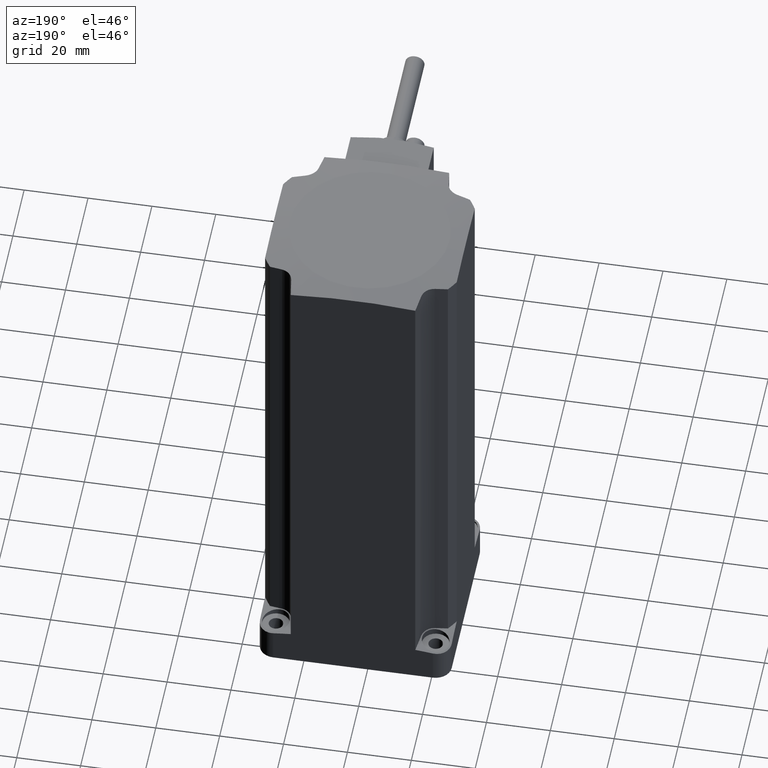
[diagram: clean part render]
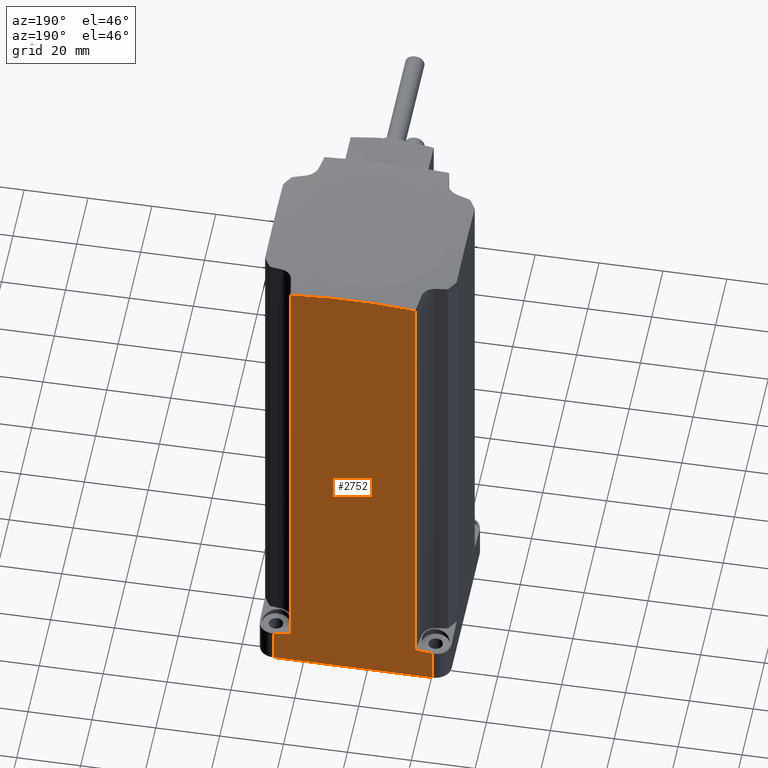
[diagram: same view with one face highlighted and labeled with its STEP entity id]
A machine part, auxiliary view. The second image highlights one B-rep face of the part: STEP entity #2752.
In plain terms, the highlighted planar face has unit normal (0, -1, 0).
Its self-contained STEP definition (entity closure, byte-faithful):
#37 = AXIS2_PLACEMENT_3D ( 'NONE', #2057, #1669, #2840 ) ;
#89 = LINE ( 'NONE', #465, #1423 ) ;
#160 = DIRECTION ( 'NONE',  ( 0.0000000000000000000, -1.000000000000000000, 0.0000000000000000000 ) ) ;
#206 = CIRCLE ( 'NONE', #3049, 197.7371993303249837 ) ;
#421 = ORIENTED_EDGE ( 'NONE', *, *, #490, .T. ) ;
#449 = VERTEX_POINT ( 'NONE', #1400 ) ;
#465 = CARTESIAN_POINT ( 'NONE',  ( -25.00000000000000000, 30.00000000000000000, 13.00000000000000000 ) ) ;
#490 = EDGE_CURVE ( 'NONE', #1175, #5032, #1870, .T. ) ;
#655 = VERTEX_POINT ( 'NONE', #2252 ) ;
#957 = CARTESIAN_POINT ( 'NONE',  ( 2.846724823761685866E-10, 29.99999999999999289, -185.4482028544169623 ) ) ;
#973 = VECTOR ( 'NONE', #2083, 1000.000000000000000 ) ;
#990 = ORIENTED_EDGE ( 'NONE', *, *, #3182, .T. ) ;
#1155 = CARTESIAN_POINT ( 'NONE',  ( 30.00000000000000000, 30.00000000000000000, 13.00000000000000000 ) ) ;
#1175 = VERTEX_POINT ( 'NONE', #3677 ) ;
#1230 = ORIENTED_EDGE ( 'NONE', *, *, #2068, .F. ) ;
#1300 = EDGE_CURVE ( 'NONE', #2957, #4945, #2894, .T. ) ;
#1400 = CARTESIAN_POINT ( 'NONE',  ( -25.00000000000000000, 30.00000000000000000, 0.0000000000000000000 ) ) ;
#1410 = CARTESIAN_POINT ( 'NONE',  ( -19.50000000000000355, 29.99999999999999645, -0.002000000000000265454 ) ) ;
#1423 = VECTOR ( 'NONE', #4213, 1000.000000000000000 ) ;
#1433 = CARTESIAN_POINT ( 'NONE',  ( 30.00000000000000000, 30.00000000000000000, 0.0000000000000000000 ) ) ;
#1485 = ORIENTED_EDGE ( 'NONE', *, *, #1300, .F. ) ;
#1578 = EDGE_LOOP ( 'NONE', ( #2265, #990, #1230, #5001, #1485, #4447, #2043, #421 ) ) ;
#1669 = DIRECTION ( 'NONE',  ( 0.0000000000000000000, -1.000000000000000000, 0.0000000000000000000 ) ) ;
#1811 = CARTESIAN_POINT ( 'NONE',  ( 25.00000000000000000, 30.00000000000000000, 0.0000000000000000000 ) ) ;
#1816 = DIRECTION ( 'NONE',  ( 0.0000000000000000000, 0.0000000000000000000, 1.000000000000000000 ) ) ;
#1870 = LINE ( 'NONE', #5057, #3652 ) ;
#1991 = LINE ( 'NONE', #2147, #4090 ) ;
#1994 = DIRECTION ( 'NONE',  ( 0.0000000000000000000, 0.0000000000000000000, -1.000000000000000000 ) ) ;
#2037 = AXIS2_PLACEMENT_3D ( 'NONE', #4006, #4848, #1994 ) ;
#2043 = ORIENTED_EDGE ( 'NONE', *, *, #2332, .F. ) ;
#2057 = CARTESIAN_POINT ( 'NONE',  ( 2.846724823761685866E-10, 29.99999999999999289, -185.4482028544169623 ) ) ;
#2068 = EDGE_CURVE ( 'NONE', #4711, #3776, #206, .T. ) ;
#2083 = DIRECTION ( 'NONE',  ( 0.0000000000000000000, 0.0000000000000000000, 1.000000000000000000 ) ) ;
#2125 = VECTOR ( 'NONE', #3390, 1000.000000000000000 ) ;
#2147 = CARTESIAN_POINT ( 'NONE',  ( 19.50000000000000355, 29.99999999999999645, -0.002000000000000265454 ) ) ;
#2252 = CARTESIAN_POINT ( 'NONE',  ( 19.49999999999999645, 29.99999999999999289, 11.32514391544359178 ) ) ;
#2265 = ORIENTED_EDGE ( 'NONE', *, *, #2956, .T. ) ;
#2332 = EDGE_CURVE ( 'NONE', #1175, #655, #2541, .T. ) ;
#2540 = EDGE_CURVE ( 'NONE', #4711, #4945, #2560, .T. ) ;
#2541 = CIRCLE ( 'NONE', #37, 197.7371993303249837 ) ;
#2560 = LINE ( 'NONE', #1410, #973 ) ;
#2752 = ADVANCED_FACE ( 'NONE', ( #3619 ), #3230, .F. ) ;
#2840 = DIRECTION ( 'NONE',  ( 0.0000000000000000000, 0.0000000000000000000, -1.000000000000000000 ) ) ;
#2894 = CIRCLE ( 'NONE', #2037, 197.7371993328550275 ) ;
#2956 = EDGE_CURVE ( 'NONE', #5032, #449, #3853, .T. ) ;
#2957 = VERTEX_POINT ( 'NONE', #4626 ) ;
#3049 = AXIS2_PLACEMENT_3D ( 'NONE', #957, #160, #4969 ) ;
#3130 = DIRECTION ( 'NONE',  ( 0.0000000000000000000, -1.000000000000000000, 0.0000000000000000000 ) ) ;
#3182 = EDGE_CURVE ( 'NONE', #449, #3776, #89, .T. ) ;
#3230 = PLANE ( 'NONE',  #3467 ) ;
#3390 = DIRECTION ( 'NONE',  ( -1.000000000000000000, 0.0000000000000000000, 0.0000000000000000000 ) ) ;
#3467 = AXIS2_PLACEMENT_3D ( 'NONE', #1155, #3130, #4731 ) ;
#3468 = EDGE_CURVE ( 'NONE', #655, #2957, #1991, .T. ) ;
#3619 = FACE_OUTER_BOUND ( 'NONE', #1578, .T. ) ;
#3652 = VECTOR ( 'NONE', #5003, 1000.000000000000000 ) ;
#3677 = CARTESIAN_POINT ( 'NONE',  ( 25.00000000000000000, 29.99999999999999289, 10.70224960240232015 ) ) ;
#3687 = CARTESIAN_POINT ( 'NONE',  ( -19.49999999999999645, 29.99999999999999289, 161.8419984425317466 ) ) ;
#3776 = VERTEX_POINT ( 'NONE', #4524 ) ;
#3798 = CARTESIAN_POINT ( 'NONE',  ( -19.50000000000000355, 29.99999999999999645, 11.32514391538718890 ) ) ;
#3853 = LINE ( 'NONE', #1433, #2125 ) ;
#4006 = CARTESIAN_POINT ( 'NONE',  ( 1.334721488490199657E-11, 29.99999999999999645, -34.93134832984431881 ) ) ;
#4090 = VECTOR ( 'NONE', #1816, 1000.000000000000000 ) ;
#4213 = DIRECTION ( 'NONE',  ( -0.0000000000000000000, -0.0000000000000000000, 1.000000000000000000 ) ) ;
#4447 = ORIENTED_EDGE ( 'NONE', *, *, #3468, .F. ) ;
#4524 = CARTESIAN_POINT ( 'NONE',  ( -25.00000000000000000, 29.99999999999999289, 10.70224960232976663 ) ) ;
#4626 = CARTESIAN_POINT ( 'NONE',  ( 19.50000000000001066, 29.99999999999998934, 161.8419984425317466 ) ) ;
#4711 = VERTEX_POINT ( 'NONE', #3798 ) ;
#4731 = DIRECTION ( 'NONE',  ( 0.0000000000000000000, -0.0000000000000000000, -1.000000000000000000 ) ) ;
#4848 = DIRECTION ( 'NONE',  ( 0.0000000000000000000, -1.000000000000000000, 0.0000000000000000000 ) ) ;
#4945 = VERTEX_POINT ( 'NONE', #3687 ) ;
#4969 = DIRECTION ( 'NONE',  ( 0.0000000000000000000, 0.0000000000000000000, -1.000000000000000000 ) ) ;
#5001 = ORIENTED_EDGE ( 'NONE', *, *, #2540, .T. ) ;
#5003 = DIRECTION ( 'NONE',  ( 0.0000000000000000000, 0.0000000000000000000, -1.000000000000000000 ) ) ;
#5032 = VERTEX_POINT ( 'NONE', #1811 ) ;
#5057 = CARTESIAN_POINT ( 'NONE',  ( 25.00000000000000000, 30.00000000000000000, 13.00000000000000000 ) ) ;